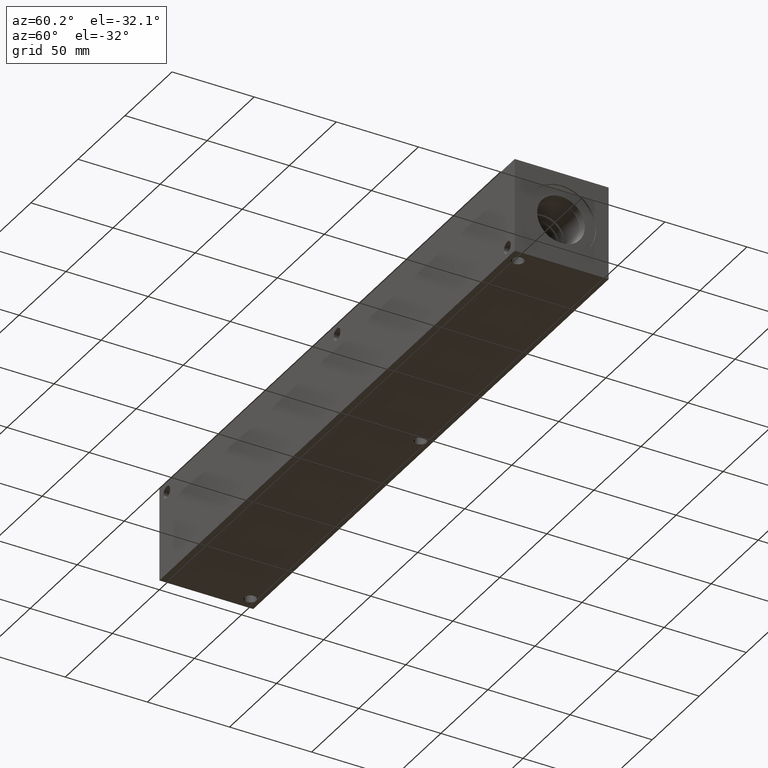
[diagram: clean part render]
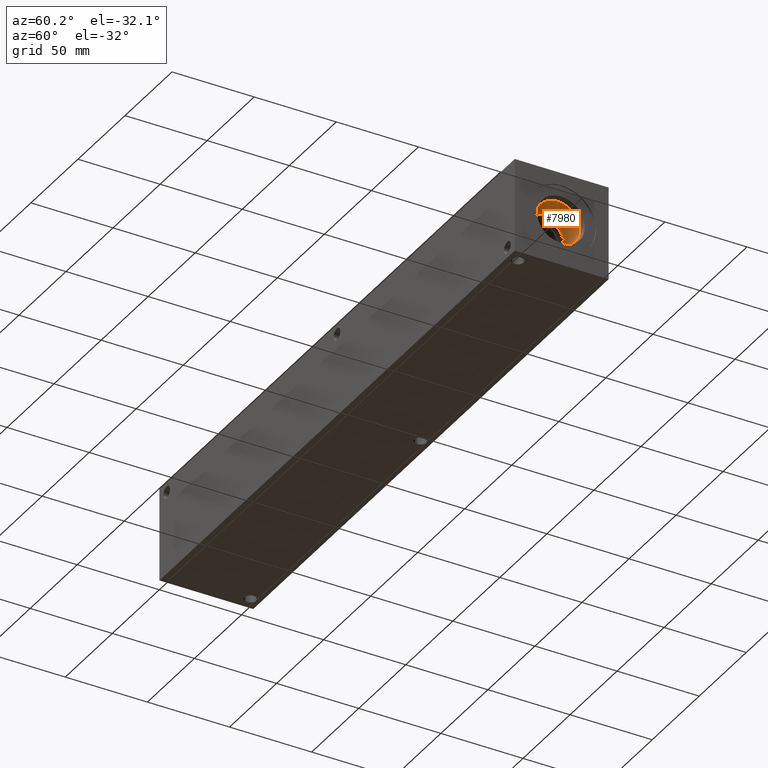
[diagram: same view with one face highlighted and labeled with its STEP entity id]
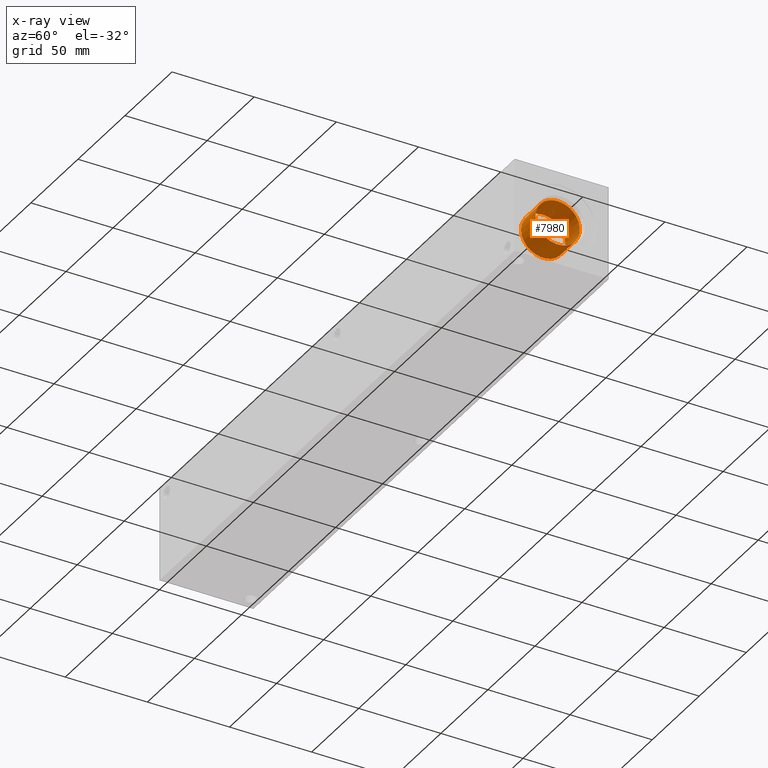
[diagram: x-ray of the same camera — body ghosted, the highlighted face saturated]
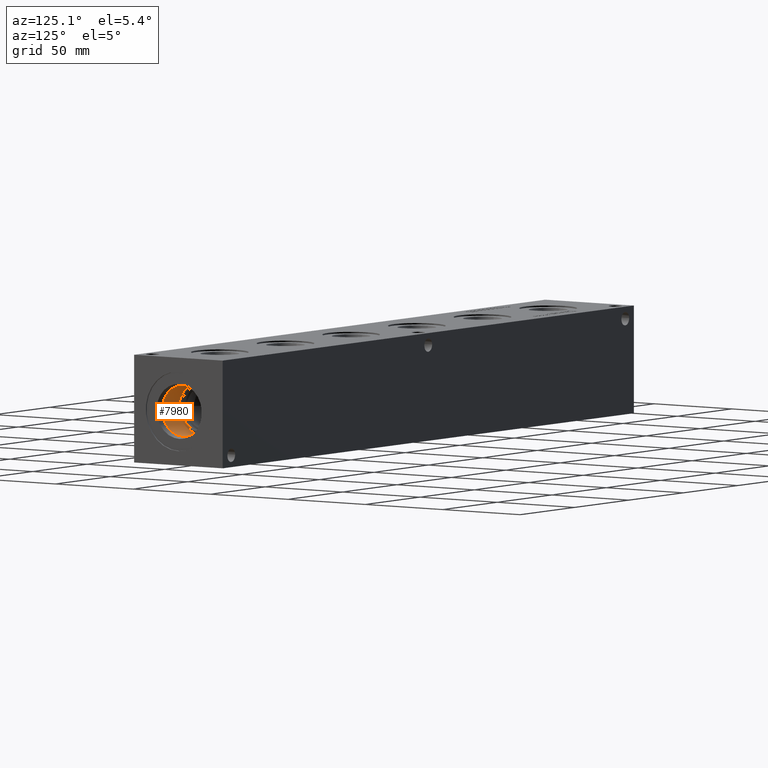
[diagram: same view with one face highlighted and labeled with its STEP entity id]
A machine part, auxiliary view. The second image highlights one B-rep face of the part: STEP entity #7980.
The next image is the same camera in x-ray: the body ghosted, the highlighted face saturated — about 0% of this face is hidden behind the body in this view.
A second angle (auxiliary view) of the same face is appended — the face is thin or edge-on in the first view.
In plain terms, the highlighted cylindrical surface (bore or boss wall) has radius 13.5001 mm, axis along (1, 0, 0).
Its self-contained STEP definition (entity closure, byte-faithful):
#58=CYLINDRICAL_SURFACE('',#8316,13.5001);
#132=CIRCLE('',#8313,13.5001);
#133=CIRCLE('',#8314,13.5001);
#135=CIRCLE('',#8317,13.5001);
#136=CIRCLE('',#8318,13.5001);
#868=FACE_OUTER_BOUND('',#1323,.T.);
#1323=EDGE_LOOP('',(#6727,#6728,#6729,#6730,#6731,#6732));
#2059=LINE('',#13629,#2756);
#2756=VECTOR('',#9630,13.5001);
#3693=VERTEX_POINT('',#13619);
#3694=VERTEX_POINT('',#13620);
#3696=VERTEX_POINT('',#13626);
#3697=VERTEX_POINT('',#13627);
#4740=EDGE_CURVE('',#3693,#3694,#132,.T.);
#4741=EDGE_CURVE('',#3694,#3693,#133,.T.);
#4743=EDGE_CURVE('',#3696,#3697,#135,.T.);
#4744=EDGE_CURVE('',#3696,#3694,#2059,.T.);
#4745=EDGE_CURVE('',#3697,#3696,#136,.T.);
#6727=ORIENTED_EDGE('',*,*,#4743,.F.);
#6728=ORIENTED_EDGE('',*,*,#4744,.T.);
#6729=ORIENTED_EDGE('',*,*,#4740,.F.);
#6730=ORIENTED_EDGE('',*,*,#4741,.F.);
#6731=ORIENTED_EDGE('',*,*,#4744,.F.);
#6732=ORIENTED_EDGE('',*,*,#4745,.F.);
#7980=ADVANCED_FACE('',(#868),#58,.F.);
#8313=AXIS2_PLACEMENT_3D('',#13621,#9620,#9621);
#8314=AXIS2_PLACEMENT_3D('',#13622,#9622,#9623);
#8316=AXIS2_PLACEMENT_3D('',#13625,#9626,#9627);
#8317=AXIS2_PLACEMENT_3D('',#13628,#9628,#9629);
#8318=AXIS2_PLACEMENT_3D('',#13630,#9631,#9632);
#9620=DIRECTION('center_axis',(1.,0.,0.));
#9621=DIRECTION('ref_axis',(0.,1.,0.));
#9622=DIRECTION('center_axis',(1.,0.,0.));
#9623=DIRECTION('ref_axis',(0.,1.,0.));
#9626=DIRECTION('center_axis',(1.,0.,0.));
#9627=DIRECTION('ref_axis',(0.,1.,0.));
#9628=DIRECTION('center_axis',(-1.,0.,0.));
#9629=DIRECTION('ref_axis',(0.,1.,0.));
#9630=DIRECTION('',(-1.,0.,0.));
#9631=DIRECTION('center_axis',(-1.,0.,0.));
#9632=DIRECTION('ref_axis',(0.,1.,0.));
#13619=CARTESIAN_POINT('',(357.9876,42.0751,28.575));
#13620=CARTESIAN_POINT('',(357.9876,15.0749,28.575));
#13621=CARTESIAN_POINT('Origin',(357.9876,28.575,28.575));
#13622=CARTESIAN_POINT('Origin',(357.9876,28.575,28.575));
#13625=CARTESIAN_POINT('Origin',(367.9063,28.575,28.575));
#13626=CARTESIAN_POINT('',(373.5451,15.0749,28.575));
#13627=CARTESIAN_POINT('',(373.5451,28.575,42.0751));
#13628=CARTESIAN_POINT('Origin',(373.5451,28.575,28.575));
#13629=CARTESIAN_POINT('',(367.9063,15.0749,28.575));
#13630=CARTESIAN_POINT('Origin',(373.5451,28.575,28.575));